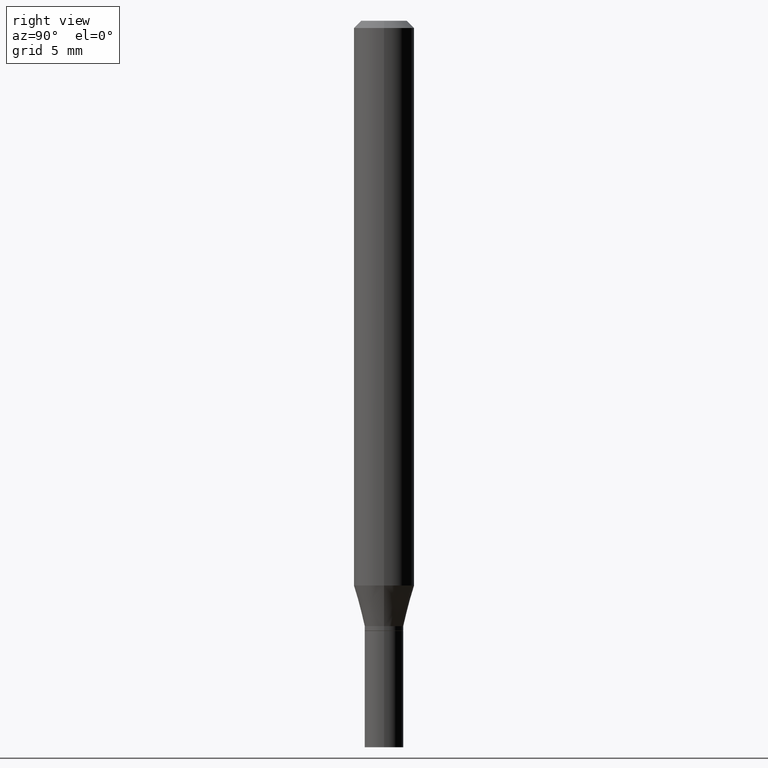
[diagram: clean part render]
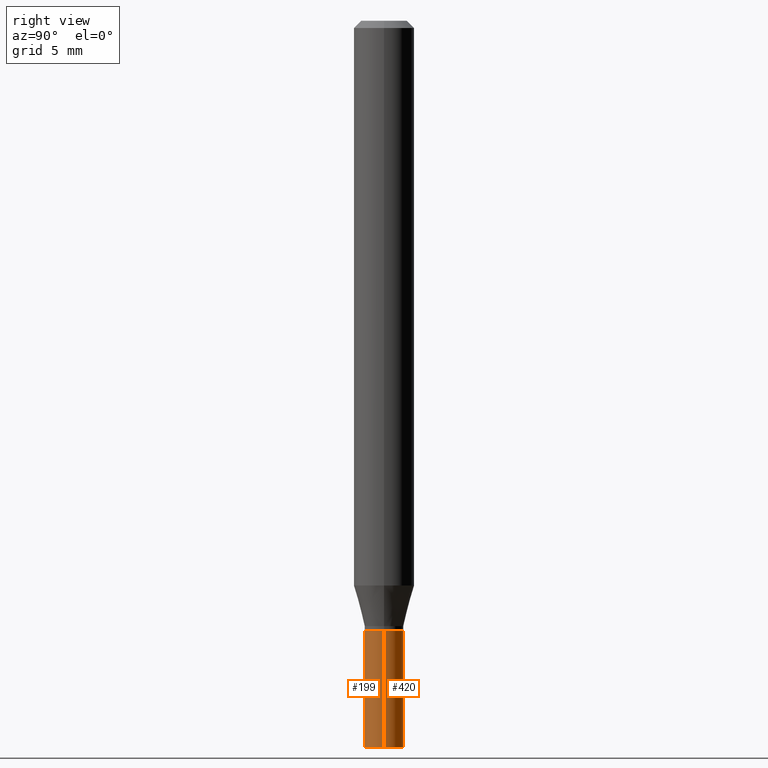
[diagram: same view with one multi-face feature highlighted, each face labeled with its STEP entity id]
A machine part, right view. The highlighted faces form ONE feature: a constant-radius fillet chain: 2 tangent blend faces with common blend radius 1.016 mm. The faces share edges in the B-rep.
Their STEP definitions:
[1] entity #199 (Cylinder):
#8 = AXIS2_PLACEMENT_3D ( 'NONE', #139, #195, #267 ) ;
#18 = ORIENTED_EDGE ( 'NONE', *, *, #27, .F. ) ;
#26 = CARTESIAN_POINT ( 'NONE',  ( -0.04000000000000000083, 2.842170943040400803E-16, -1.967574036101962509E-30 ) ) ;
#27 = EDGE_CURVE ( 'NONE', #47, #396, #463, .T. ) ;
#40 = EDGE_CURVE ( 'NONE', #143, #47, #447, .T. ) ;
#42 = VERTEX_POINT ( 'NONE', #57 ) ;
#47 = VERTEX_POINT ( 'NONE', #360 ) ;
#48 = EDGE_CURVE ( 'NONE', #143, #42, #51, .T. ) ;
#51 = CIRCLE ( 'NONE', #295, 0.04000000000000000083 ) ;
#57 = CARTESIAN_POINT ( 'NONE',  ( 0.04000000000000000083, -5.516540515372169003E-15, -1.500000000000000222 ) ) ;
#63 = CARTESIAN_POINT ( 'NONE',  ( 0.000000000000000000, 0.000000000000000000, 0.000000000000000000 ) ) ;
#107 = DIRECTION ( 'NONE',  ( -2.445468806185136877E-29, 3.491481338843145188E-15, 1.000000000000000000 ) ) ;
#139 = CARTESIAN_POINT ( 'NONE',  ( 3.081290695793272291E-29, -4.399266486942364120E-15, -1.260000000000000231 ) ) ;
#143 = VERTEX_POINT ( 'NONE', #298 ) ;
#155 = ORIENTED_EDGE ( 'NONE', *, *, #48, .T. ) ;
#167 = CARTESIAN_POINT ( 'NONE',  ( 0.04000000000000000083, -4.678584994049814947E-15, -1.260000000000000231 ) ) ;
#168 = CARTESIAN_POINT ( 'NONE',  ( 3.668203209277704895E-29, -5.237222008264718177E-15, -1.500000000000000222 ) ) ;
#180 = EDGE_LOOP ( 'NONE', ( #389, #155, #413, #18 ) ) ;
#195 = DIRECTION ( 'NONE',  ( -2.445468806185136597E-29, 3.491481338843145583E-15, 1.000000000000000000 ) ) ;
#199 = ADVANCED_FACE ( 'NONE', ( #307 ), #383, .T. ) ;
#216 = DIRECTION ( 'NONE',  ( 1.000000000000000000, -6.982962677686265922E-15, 4.876176775795935793E-29 ) ) ;
#243 = VECTOR ( 'NONE', #417, 39.37007874015748143 ) ;
#261 = DIRECTION ( 'NONE',  ( -2.445468806185136597E-29, 3.491481338843145583E-15, 1.000000000000000000 ) ) ;
#267 = DIRECTION ( 'NONE',  ( 1.000000000000000000, -6.982962677686259611E-15, 0.000000000000000000 ) ) ;
#270 = CARTESIAN_POINT ( 'NONE',  ( 0.04000000000000000083, -2.793185071074506290E-16, 1.950470710318374387E-30 ) ) ;
#295 = AXIS2_PLACEMENT_3D ( 'NONE', #168, #261, #327 ) ;
#298 = CARTESIAN_POINT ( 'NONE',  ( -0.04000000000000000083, -4.534027153299501216E-15, -1.500000000000000222 ) ) ;
#307 = FACE_OUTER_BOUND ( 'NONE', #180, .T. ) ;
#308 = EDGE_CURVE ( 'NONE', #42, #396, #461, .T. ) ;
#327 = DIRECTION ( 'NONE',  ( 1.000000000000000000, -6.982962677686259611E-15, 0.000000000000000000 ) ) ;
#338 = VECTOR ( 'NONE', #107, 39.37007874015748143 ) ;
#357 = AXIS2_PLACEMENT_3D ( 'NONE', #63, #462, #216 ) ;
#360 = CARTESIAN_POINT ( 'NONE',  ( -0.04000000000000000083, -4.534027153299501216E-15, -1.260000000000000231 ) ) ;
#383 = CYLINDRICAL_SURFACE ( 'NONE', #357, 0.04000000000000000083 ) ;
#389 = ORIENTED_EDGE ( 'NONE', *, *, #40, .F. ) ;
#396 = VERTEX_POINT ( 'NONE', #167 ) ;
#413 = ORIENTED_EDGE ( 'NONE', *, *, #308, .T. ) ;
#417 = DIRECTION ( 'NONE',  ( -2.445468806185136877E-29, 3.491481338843145188E-15, 1.000000000000000000 ) ) ;
#447 = LINE ( 'NONE', #26, #243 ) ;
#461 = LINE ( 'NONE', #270, #338 ) ;
#462 = DIRECTION ( 'NONE',  ( -2.445468806185136597E-29, 3.491481338843145583E-15, 1.000000000000000000 ) ) ;
#463 = CIRCLE ( 'NONE', #8, 0.04000000000000000083 ) ;
[2] entity #420 (Cylinder):
#11 = EDGE_CURVE ( 'NONE', #396, #47, #30, .T. ) ;
#23 = DIRECTION ( 'NONE',  ( 1.000000000000000000, -6.982962677686259611E-15, 0.000000000000000000 ) ) ;
#25 = DIRECTION ( 'NONE',  ( 1.000000000000000000, -6.982962677686265922E-15, 4.876176775795935793E-29 ) ) ;
#26 = CARTESIAN_POINT ( 'NONE',  ( -0.04000000000000000083, 2.842170943040400803E-16, -1.967574036101962509E-30 ) ) ;
#30 = CIRCLE ( 'NONE', #200, 0.04000000000000000083 ) ;
#40 = EDGE_CURVE ( 'NONE', #143, #47, #447, .T. ) ;
#42 = VERTEX_POINT ( 'NONE', #57 ) ;
#47 = VERTEX_POINT ( 'NONE', #360 ) ;
#57 = CARTESIAN_POINT ( 'NONE',  ( 0.04000000000000000083, -5.516540515372169003E-15, -1.500000000000000222 ) ) ;
#68 = CARTESIAN_POINT ( 'NONE',  ( 3.668203209277704895E-29, -5.237222008264718177E-15, -1.500000000000000222 ) ) ;
#91 = CARTESIAN_POINT ( 'NONE',  ( 0.000000000000000000, 0.000000000000000000, 0.000000000000000000 ) ) ;
#107 = DIRECTION ( 'NONE',  ( -2.445468806185136877E-29, 3.491481338843145188E-15, 1.000000000000000000 ) ) ;
#111 = ORIENTED_EDGE ( 'NONE', *, *, #407, .T. ) ;
#122 = FACE_OUTER_BOUND ( 'NONE', #157, .T. ) ;
#143 = VERTEX_POINT ( 'NONE', #298 ) ;
#157 = EDGE_LOOP ( 'NONE', ( #111, #262, #384, #319 ) ) ;
#167 = CARTESIAN_POINT ( 'NONE',  ( 0.04000000000000000083, -4.678584994049814947E-15, -1.260000000000000231 ) ) ;
#169 = DIRECTION ( 'NONE',  ( -2.445468806185136597E-29, 3.491481338843145583E-15, 1.000000000000000000 ) ) ;
#200 = AXIS2_PLACEMENT_3D ( 'NONE', #301, #169, #23 ) ;
#209 = DIRECTION ( 'NONE',  ( -2.445468806185136597E-29, 3.491481338843145583E-15, 1.000000000000000000 ) ) ;
#243 = VECTOR ( 'NONE', #417, 39.37007874015748143 ) ;
#260 = CIRCLE ( 'NONE', #380, 0.04000000000000000083 ) ;
#262 = ORIENTED_EDGE ( 'NONE', *, *, #40, .T. ) ;
#270 = CARTESIAN_POINT ( 'NONE',  ( 0.04000000000000000083, -2.793185071074506290E-16, 1.950470710318374387E-30 ) ) ;
#298 = CARTESIAN_POINT ( 'NONE',  ( -0.04000000000000000083, -4.534027153299501216E-15, -1.500000000000000222 ) ) ;
#301 = CARTESIAN_POINT ( 'NONE',  ( 3.081290695793272291E-29, -4.399266486942364120E-15, -1.260000000000000231 ) ) ;
#308 = EDGE_CURVE ( 'NONE', #42, #396, #461, .T. ) ;
#319 = ORIENTED_EDGE ( 'NONE', *, *, #308, .F. ) ;
#338 = VECTOR ( 'NONE', #107, 39.37007874015748143 ) ;
#342 = DIRECTION ( 'NONE',  ( 1.000000000000000000, -6.982962677686259611E-15, 0.000000000000000000 ) ) ;
#350 = AXIS2_PLACEMENT_3D ( 'NONE', #91, #423, #25 ) ;
#360 = CARTESIAN_POINT ( 'NONE',  ( -0.04000000000000000083, -4.534027153299501216E-15, -1.260000000000000231 ) ) ;
#380 = AXIS2_PLACEMENT_3D ( 'NONE', #68, #209, #342 ) ;
#384 = ORIENTED_EDGE ( 'NONE', *, *, #11, .F. ) ;
#396 = VERTEX_POINT ( 'NONE', #167 ) ;
#402 = CYLINDRICAL_SURFACE ( 'NONE', #350, 0.04000000000000000083 ) ;
#407 = EDGE_CURVE ( 'NONE', #42, #143, #260, .T. ) ;
#417 = DIRECTION ( 'NONE',  ( -2.445468806185136877E-29, 3.491481338843145188E-15, 1.000000000000000000 ) ) ;
#420 = ADVANCED_FACE ( 'NONE', ( #122 ), #402, .T. ) ;
#423 = DIRECTION ( 'NONE',  ( -2.445468806185136597E-29, 3.491481338843145583E-15, 1.000000000000000000 ) ) ;
#447 = LINE ( 'NONE', #26, #243 ) ;
#461 = LINE ( 'NONE', #270, #338 ) ;